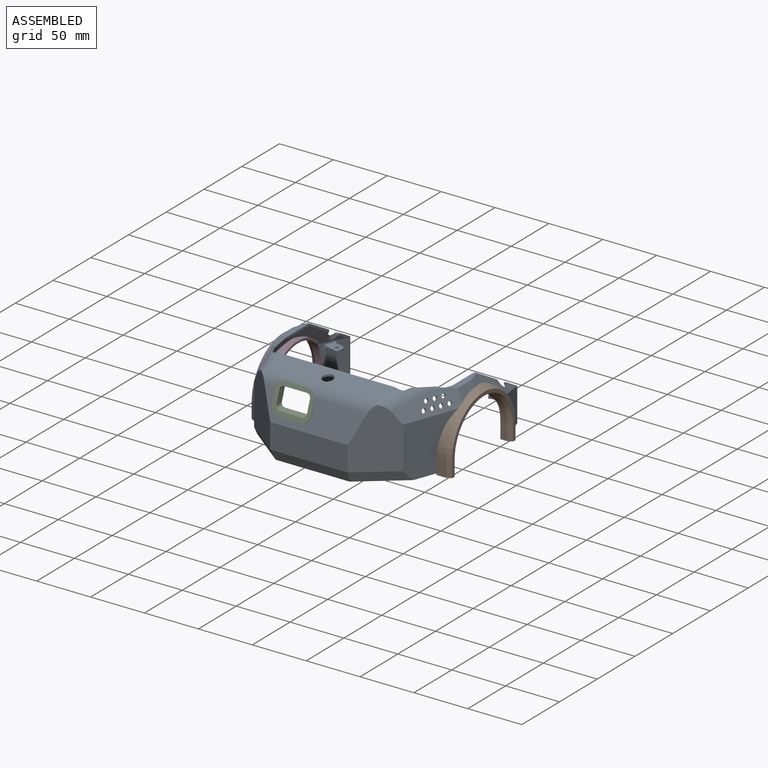
[diagram: assembled view]
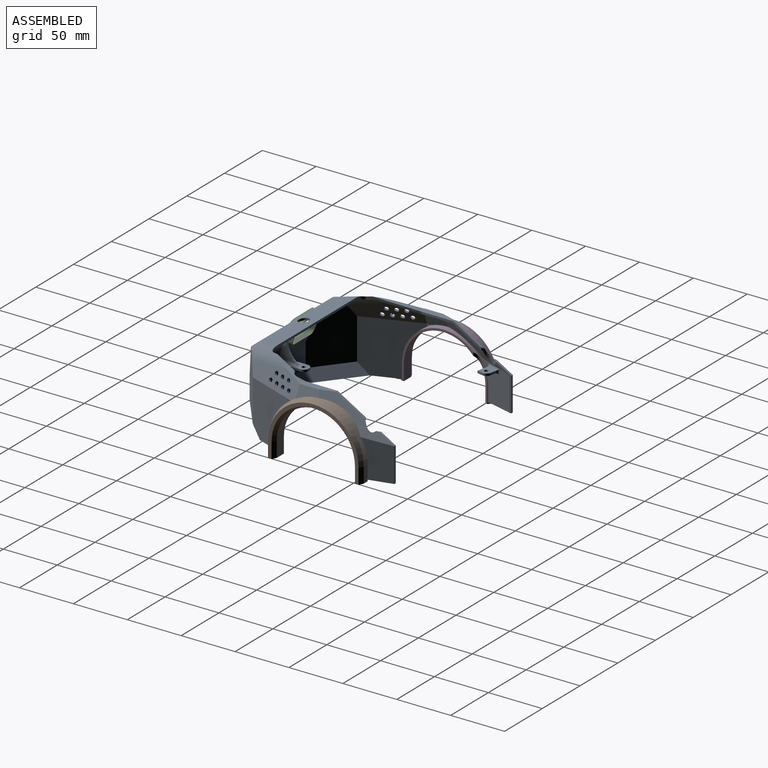
[diagram: assembled view, second angle]
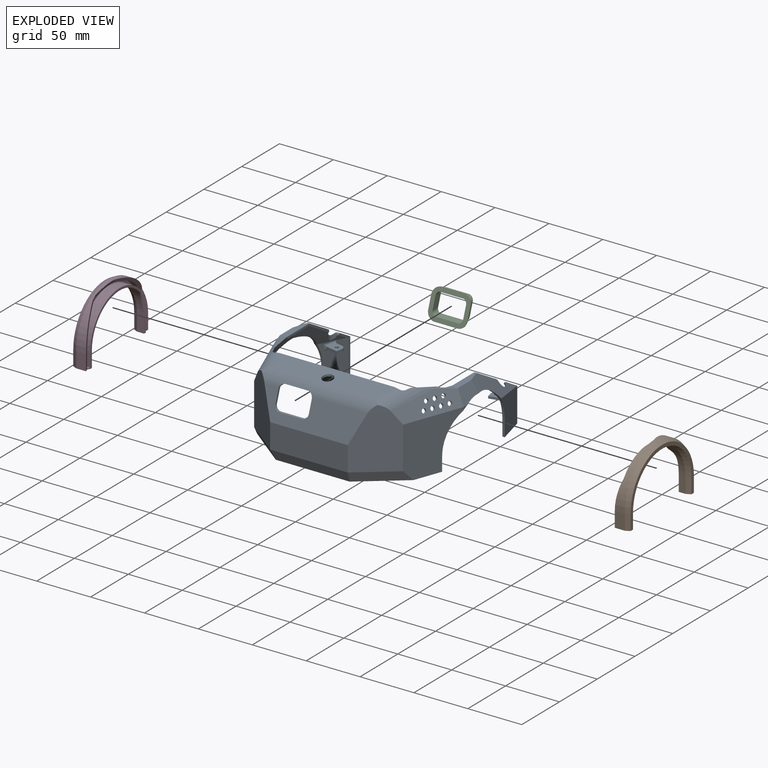
[diagram: exploded view]
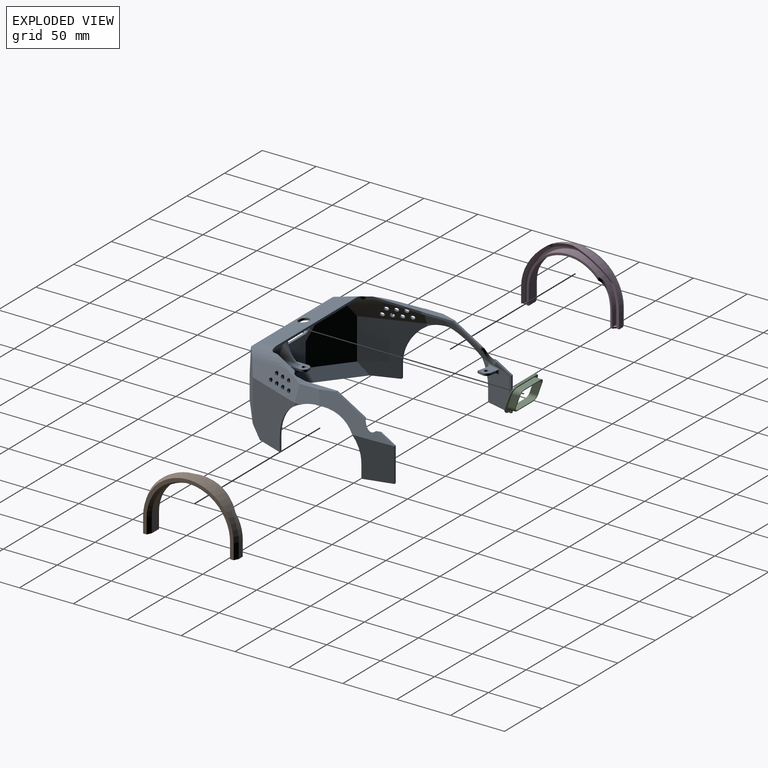
[diagram: exploded view, second angle]
ASSEMBLY  parts=4 mates=3
PART A: 155 faces, bbox 179.1x166x78.9 mm
  f0: cylinder r=14mm len=105.38mm, axis (-1,0,0), area 1347.8mm2, adj f4,f61,f62,f76,f79,f80,f127,f134
  f1: plane 26.97x10.06mm, normal (-0.94,0.35,0), area 61.4mm2, adj f2,f22,f35,f52,f79,f128
  f2: plane 35.33x18.37mm, normal (-0.07,-0.2,-0.98), area 85.4mm2, adj f1,f12,f63,f67,f79,f128
  f3: plane 104.55x15.39mm, normal (0,-0.17,0.98), area 1490.9mm2, adj f31,f52,f53,f54,f127
  f4: plane 94.42x26.55mm, normal (0,0.94,-0.33), area 1655mm2, adj f0,f6,f61,f62,f116,f117,f119,f120
  f5: plane 25.73x10mm, normal (0,0,1), area 140.6mm2, adj f110,f111,f112,f113,f114,f115,f118,f120
  f6: plane 70.61x22.19mm, normal (0,1,0), area 1487.5mm2, adj f4,f61,f62,f82,f122,f123,f125
  f7: plane 25.7x10mm, normal (0,0,-1), area 239mm2, adj f110,f111,f112,f113,f114,f115,f123
  f8: plane 11.68x11.6mm, normal (0,0,1), area 86.4mm2, adj f97,f98,f99,f100,f101,f102,f103
  f9: plane 11.68x11.6mm, normal (0,0,-1), area 86.4mm2, adj f97,f98,f99,f100,f101,f102,f104
  f10: plane 11.68x11.6mm, normal (0,0,1), area 86.4mm2, adj f92,f93,f94,f95,f96,f107,f109
  f11: plane 11.68x11.6mm, normal (0,0,-1), area 86.4mm2, adj f92,f93,f94,f95,f96,f108,f109
  f12: plane 63.33x19.13mm, normal (-1,0,0), area 135.2mm2, adj f2,f35,f37,f45,f67,f73,f90,f128
  f13: plane 55.57x17.57mm, normal (1,0,0), area 119.3mm2, adj f15,f17,f28,f38,f68,f91,f151
  f14: plane 14.31x8.33mm, normal (0,0.5,0.86), area 31.8mm2, adj f26,f39,f48,f153
  f15: plane 26.59x15.48mm, normal (0,0.5,0.86), area 60.2mm2, adj f13,f38,f47,f151
  f16: plane 13.31x7.75mm, normal (0,-0.5,-0.86), area 13mm2, adj f39,f59,f75,f77,f90
  f17: plane 27.12x15.8mm, normal (0,-0.5,-0.86), area 27.7mm2, adj f13,f18,f68,f91
  f18: plane 63.29x29.56mm, normal (0.85,-0.27,-0.46), area 537.8mm2, adj f17,f68,f69,f74,f78,f84,f91,f102
  f19: plane 26x8.5mm, normal (0,0,-1), area 54mm2, adj f25,f40,f51,f58,f78,f85
  f20: plane 26x8.5mm, normal (0,0,-1), area 54mm2, adj f26,f39,f50,f59,f77,f88
  f21: plane 5.56x2.86mm, normal (-1,0,0), area 7.4mm2, adj f41,f44,f84
  f22: cylinder r=5mm len=4.69mm, axis (0,0,1), area 14.1mm2, adj f1,f31,f52,f79
  f23: cylinder r=5mm len=4.69mm, axis (0,0,1), area 14.1mm2, adj f28,f31,f54,f80
  f24: plane 163.28x54.9mm, normal (0,0,-1), area 469.1mm2, adj f43,f44,f55,f56,f57,f71,f72,f81
  f25: plane 31.56x2mm, normal (0,1,0), area 63.1mm2, adj f19,f40,f46,f51
  f26: plane 31.56x2mm, normal (0,1,0), area 63.1mm2, adj f14,f20,f39,f50
  f27: plane 72x23mm, normal (0,-1,0), area 1656mm2, adj f30,f32,f49,f56
  f28: plane 40.4x15.06mm, normal (0.94,0.35,0), area 90.7mm2, adj f13,f23,f34,f54,f64,f68,f80
  f29: plane 58.94x26.52mm, normal (-0.87,-0.32,0.38), area 899.2mm2, adj f32,f34,f38,f41,f44,f54,f137,f138
  f30: plane 57.78x34.73mm, normal (0.62,-0.79,0), area 1912.7mm2, adj f27,f33,f43,f49,f52,f53,f57
  f31: plane 113.7x2.87mm, normal (0,1,0), area 231.2mm2, adj f3,f22,f23,f52,f54,f76,f79,f80
  f32: plane 57.78x34.73mm, normal (-0.62,-0.79,0), area 1912.7mm2, adj f27,f29,f44,f49,f53,f54,f55
  f33: plane 58.94x26.52mm, normal (0.87,-0.32,0.38), area 899.2mm2, adj f30,f35,f37,f42,f43,f52,f144,f145
  f34: plane 38.01x21.23mm, normal (-0.07,0.2,0.98), area 159mm2, adj f28,f29,f38,f54
  f35: plane 38.01x21.23mm, normal (0.07,0.2,0.98), area 131.6mm2, adj f1,f12,f33,f37,f52,f128
  f36: plane 5.56x2.86mm, normal (1,0,0), area 7.4mm2, adj f42,f43,f89
  f37: plane 31.55x6.17mm, normal (0,0,1), area 160.5mm2, adj f12,f33,f35,f42,f45,f48
  f38: plane 31.55x6.17mm, normal (0,0,1), area 160.5mm2, adj f13,f15,f29,f34,f41,f47
  f39: plane 39.46x14.86mm, normal (-1,0,0), area 93.4mm2, adj f14,f16,f20,f26,f59,f90,f153
  f40: plane 39.46x14.86mm, normal (1,0,0), area 93.4mm2, adj f19,f25,f46,f58,f74,f91,f152
  f41: plane 23.45x14.8mm, normal (-0.92,0,0.38), area 270mm2, adj f21,f29,f38,f47,f84
  f42: plane 23.45x14.8mm, normal (0.92,0,0.38), area 270mm2, adj f33,f36,f37,f48,f89
  f43: plane 52.34x49mm, normal (0.94,-0.35,0), area 1972mm2, adj f24,f30,f33,f36,f57,f87,f89
  f44: plane 52.34x49mm, normal (-0.94,-0.35,0), area 1972mm2, adj f21,f24,f29,f32,f55,f84,f86
  f45: plane 26.59x15.48mm, normal (0,0.5,0.86), area 60.2mm2, adj f12,f37,f48,f154
  f46: plane 14.31x8.33mm, normal (0,0.5,0.86), area 31.8mm2, adj f25,f40,f47,f152
  f47: plane 67.47x31.65mm, normal (-0.85,0.27,0.46), area 710.5mm2, adj f15,f38,f41,f46,f51,f84,f91,f151
  f48: plane 67.47x31.65mm, normal (0.85,0.27,0.46), area 710.5mm2, adj f14,f37,f42,f45,f50,f89,f90,f153
  f49: plane 96.09x26.88mm, normal (0,-0.94,0.33), area 1757mm2, adj f27,f30,f32,f53,f129,f130,f131,f132
  f50: plane 36.39x34.03mm, normal (0.97,0.24,0), area 937.5mm2, adj f20,f26,f48,f88,f89
  f51: plane 36.39x34.03mm, normal (-0.97,0.24,0), area 937.5mm2, adj f19,f25,f47,f84,f85
  f52: cylinder r=16mm len=49.4mm, axis (0.28,0.95,0.17), area 528.7mm2, adj f1,f3,f22,f30,f31,f33,f35,f53
  f53: cylinder r=16mm len=107.56mm, axis (-1,0,0), area 1596.5mm2, adj f3,f30,f32,f49,f52,f54,f127,f134
  f54: cylinder r=16mm len=49.4mm, axis (0.28,-0.95,-0.17), area 528.7mm2, adj f3,f23,f28,f29,f31,f32,f34,f53
  f55: plane 38.11x35mm, normal (-0.55,-0.7,-0.45), area 506.1mm2, adj f24,f32,f44,f56
  f56: plane 72x10mm, normal (0,-0.89,-0.45), area 785.6mm2, adj f24,f27,f55,f57
  f57: plane 38.11x35mm, normal (0.55,-0.7,-0.45), area 506.1mm2, adj f24,f30,f43,f56
  f58: plane 30.41x0.44mm, normal (0,-1,0), area 13.3mm2, adj f19,f40,f74,f78
  f59: plane 30.41x0.44mm, normal (0,-1,0), area 13.3mm2, adj f16,f20,f39,f77
  f60: plane 57.83x26.04mm, normal (0.87,0.32,-0.38), area 831.6mm2, adj f62,f64,f68,f69,f72,f80,f137,f138
  f61: plane 56.05x33.7mm, normal (-0.62,0.79,0), area 1802.6mm2, adj f0,f4,f6,f63,f71,f79,f83
  f62: plane 56.05x33.7mm, normal (0.62,0.79,0), area 1802.6mm2, adj f0,f4,f6,f60,f72,f80,f81
  f63: plane 57.83x26.04mm, normal (-0.87,0.32,-0.38), area 831.6mm2, adj f2,f61,f67,f70,f71,f79,f144,f145
  f64: plane 35.36x18.37mm, normal (0.07,-0.2,-0.98), area 112.8mm2, adj f28,f60,f68,f80
  f65: plane 4.27x2.24mm, normal (-1,0,0), area 4.5mm2, adj f70,f71,f89
  f66: plane 4.27x2.24mm, normal (1,0,0), area 4.5mm2, adj f69,f72,f84
  f67: plane 30.74x4.83mm, normal (0,0,-1), area 120mm2, adj f2,f12,f63,f70,f73,f75
  f68: plane 30.74x4.91mm, normal (0,0,-1), area 120mm2, adj f13,f17,f18,f28,f60,f64,f69
  f69: plane 22.5x13.23mm, normal (0.92,0,-0.38), area 222.6mm2, adj f18,f60,f66,f68,f84
  f70: plane 22.5x13.23mm, normal (-0.92,0,-0.38), area 222.6mm2, adj f63,f65,f67,f75,f89
  f71: plane 51.48x48.6mm, normal (-0.94,0.35,0), area 1882.5mm2, adj f24,f61,f63,f65,f83,f87,f89
  f72: plane 51.48x48.6mm, normal (0.94,0.35,0), area 1882.5mm2, adj f24,f60,f62,f66,f81,f84,f86
  f73: plane 27.12x15.8mm, normal (0,-0.5,-0.86), area 27.7mm2, adj f12,f67,f75,f90
  f74: plane 13.31x7.75mm, normal (0,-0.5,-0.86), area 13mm2, adj f18,f40,f58,f78,f91
  f75: plane 63.29x29.56mm, normal (-0.85,-0.27,-0.46), area 537.8mm2, adj f16,f67,f70,f73,f77,f89,f90,f107
  f76: plane 104.35x15.04mm, normal (0,0.17,-0.98), area 1456.8mm2, adj f0,f31,f79,f80,f127
  f77: plane 35.74x31.57mm, normal (-0.97,-0.24,0), area 772.5mm2, adj f16,f20,f59,f75,f88,f89,f106,f107
  f78: plane 35.74x31.57mm, normal (0.97,-0.24,0), area 772.5mm2, adj f18,f19,f58,f74,f84,f85,f102,f103
  f79: cylinder r=14mm len=44.87mm, axis (0.28,0.95,0.17), area 415.1mm2, adj f0,f1,f2,f22,f31,f61,f63,f76
  f80: cylinder r=14mm len=44.87mm, axis (0.28,-0.95,-0.17), area 415.1mm2, adj f0,f23,f28,f31,f60,f62,f64,f76
  f81: plane 37.37x34.65mm, normal (0.55,0.7,0.45), area 517.1mm2, adj f24,f62,f72,f82
  f82: plane 70.61x10.47mm, normal (0,0.89,0.45), area 805.5mm2, adj f6,f24,f81,f83
  f83: plane 37.37x34.65mm, normal (-0.55,0.7,0.45), area 517.1mm2, adj f24,f61,f71,f82
  f84: cylinder r=39mm len=78mm, axis (1,0,0), area 267.9mm2, adj f18,f21,f41,f44,f47,f51,f66,f69
  f85: plane 13x2.06mm, normal (0,-1,0), area 26.8mm2, adj f19,f51,f78,f84
  f86: plane 13x2.13mm, normal (0,1,0), area 27.7mm2, adj f24,f44,f72,f84
  f87: plane 13x2.13mm, normal (0,1,0), area 27.7mm2, adj f24,f43,f71,f89
  f88: plane 13x2.06mm, normal (0,-1,0), area 26.8mm2, adj f20,f50,f77,f89
  f89: cylinder r=39mm len=78mm, axis (1,0,0), area 267.9mm2, adj f36,f42,f43,f48,f50,f65,f70,f71
  f90: cylinder r=7mm len=13.01mm, axis (0,0,1), area 59.6mm2, adj f12,f16,f39,f48,f73,f75,f153,f154
  f91: cylinder r=7mm len=13.01mm, axis (0,0,1), area 59.6mm2, adj f13,f17,f18,f40,f47,f74,f151,f152
  f92: plane 5.32x2mm, normal (-0.22,0.98,0), area 10.9mm2, adj f10,f11,f93,f109
  f93: cylinder r=5mm len=4.23mm, axis (0,0,-1), area 12.2mm2, adj f10,f11,f92,f94
  f94: plane 6.25x2mm, normal (-0.98,-0.22,0), area 12.8mm2, adj f10,f11,f93,f95
  f95: plane 10.27x2.27mm, normal (0.22,-0.98,0), area 21mm2, adj f10,f11,f94,f106,f107,f108
  f96: cylinder r=1.75mm len=3.5mm, axis (0,0,-1), area 22mm2, adj f10,f11
  f97: plane 10.27x2.27mm, normal (-0.22,-0.98,0), area 21mm2, adj f8,f9,f98,f103,f104,f105
  f98: plane 6.25x2mm, normal (0.98,-0.22,0), area 12.8mm2, adj f8,f9,f97,f99
  f99: cylinder r=5mm len=4.23mm, axis (0,0,-1), area 12.2mm2, adj f8,f9,f98,f100
  f100: plane 5.32x2mm, normal (0.22,0.98,0), area 10.9mm2, adj f8,f9,f99,f102
  f101: cylinder r=1.75mm len=3.5mm, axis (0,0,-1), area 22mm2, adj f8,f9
  f102: cylinder r=2mm len=5.65mm, axis (0,0,1), area 10.9mm2, adj f8,f9,f18,f78,f100,f103,f104
  f103: cylinder r=2mm len=13.44mm, axis (-0.24,-0.97,0), area 34.3mm2, adj f8,f18,f78,f97,f102,f105
  f104: cylinder r=2mm len=13.78mm, axis (0.24,0.97,0), area 35.1mm2, adj f9,f78,f97,f102,f105
  f105: cylinder r=2mm len=6mm, axis (0,0,-1), area 12.4mm2, adj f78,f97,f103,f104
  f106: cylinder r=2mm len=6mm, axis (0,0,-1), area 12.4mm2, adj f77,f95,f107,f108
  f107: cylinder r=2mm len=13.44mm, axis (-0.24,0.97,0), area 34.3mm2, adj f10,f75,f77,f95,f106,f109
  f108: cylinder r=2mm len=13.78mm, axis (0.24,-0.97,0), area 35.1mm2, adj f11,f77,f95,f106,f109
  f109: cylinder r=2mm len=5.65mm, axis (0,0,-1), area 10.9mm2, adj f10,f11,f75,f77,f92,f107,f108
  f110: plane 21x2mm, normal (1,0,0), area 42mm2, adj f5,f7,f112,f122
  f111: plane 21x2mm, normal (-1,0,0), area 42mm2, adj f5,f7,f114,f125
  f112: cylinder r=5mm len=4.7mm, axis (0,0,-1), area 12.2mm2, adj f5,f7,f110,f113
  f113: plane 3.41x2mm, normal (0,1,0), area 6.8mm2, adj f5,f7,f112,f114
  f114: cylinder r=5mm len=4.7mm, axis (0,0,-1), area 12.2mm2, adj f5,f7,f111,f113
  f115: cylinder r=1.75mm len=3.5mm, axis (0,0,-1), area 22mm2, adj f5,f7
  f116: plane 24.71x15.7mm, normal (-1,0,0), area 122.8mm2, adj f4,f119,f124
  f117: plane 24.71x15.7mm, normal (1,0,0), area 122.8mm2, adj f4,f119,f120
  f118: plane 6x2.16mm, normal (0,0.61,0.79), area 8.3mm2, adj f5,f119,f120,f124
  f119: cylinder r=22.27mm len=25.05mm, axis (1,0,0), area 55.9mm2, adj f4,f116,f117,f118,f120,f124
  f120: cylinder r=2mm len=18.41mm, axis (0,1,0), area 52.6mm2, adj f4,f5,f117,f118,f119,f121
  f121: cylinder r=2mm len=5.97mm, axis (-1,0,0), area 10.7mm2, adj f4,f5,f120,f122
  f122: cylinder r=2mm len=5.66mm, axis (0,0,1), area 10.7mm2, adj f5,f6,f110,f121,f123
  f123: cylinder r=2mm len=14mm, axis (1,0,0), area 37.7mm2, adj f6,f7,f122,f125
  f124: cylinder r=2mm len=18.41mm, axis (0,-1,0), area 52.6mm2, adj f4,f5,f116,f118,f119,f126
  f125: cylinder r=2mm len=5.66mm, axis (0,0,-1), area 10.7mm2, adj f5,f6,f111,f123,f126
  f126: cylinder r=2mm len=5.97mm, axis (-1,0,0), area 10.7mm2, adj f4,f5,f124,f125
  f127: cylinder r=5mm len=10mm, axis (0,0,-1), area 64.5mm2, adj f0,f3,f53,f76
  f128: cylinder r=5.73mm len=5.68mm, axis (0,0,-1), area 16.9mm2, adj f1,f2,f12,f35
  f129: cylinder r=5mm len=5mm, axis (0,-1,0), area 16.7mm2, adj f4,f49,f131,f132
  f130: cylinder r=5mm len=5mm, axis (0,-1,0), area 16.7mm2, adj f4,f49,f131,f133
  f131: plane 21x2.12mm, normal (0,0,1), area 44.5mm2, adj f4,f49,f129,f130
  f132: plane 10.9x5.95mm, normal (-1,0,0), area 23.1mm2, adj f4,f49,f129,f134
  f133: plane 10.9x5.95mm, normal (1,0,0), area 23.1mm2, adj f4,f49,f130,f135
  f134: cylinder r=5mm len=5mm, axis (0,-1,0), area 17.7mm2, adj f0,f4,f49,f53,f132,f136
  f135: cylinder r=5mm len=5mm, axis (0,-1,0), area 17.7mm2, adj f0,f4,f49,f53,f133,f136
  f136: plane 21x2.47mm, normal (0,0,-1), area 51.9mm2, adj f0,f53,f134,f135
  f137: cylinder r=2mm len=4.46mm, axis (-0.87,-0.32,0.38), area 25.1mm2, adj f29,f60
  f138: cylinder r=2mm len=4.46mm, axis (-0.87,-0.32,0.38), area 25.1mm2, adj f29,f60
  f139: cylinder r=2mm len=4.46mm, axis (-0.87,-0.32,0.38), area 25.1mm2, adj f29,f60
  f140: cylinder r=2mm len=4.46mm, axis (-0.87,-0.32,0.38), area 25.1mm2, adj f29,f60
  f141: cylinder r=2mm len=4.46mm, axis (-0.87,-0.32,0.38), area 25.1mm2, adj f29,f60
  f142: cylinder r=2mm len=4.46mm, axis (-0.87,-0.32,0.38), area 25.1mm2, adj f29,f60
  f143: cylinder r=2mm len=4.46mm, axis (-0.87,-0.32,0.38), area 25.1mm2, adj f29,f60
  f144: cylinder r=2mm len=4.46mm, axis (0.87,-0.32,0.38), area 25.1mm2, adj f33,f63
  f145: cylinder r=2mm len=4.46mm, axis (0.87,-0.32,0.38), area 25.1mm2, adj f33,f63
  f146: cylinder r=2mm len=4.46mm, axis (0.87,-0.32,0.38), area 25.1mm2, adj f33,f63
  f147: cylinder r=2mm len=4.46mm, axis (0.87,-0.32,0.38), area 25.1mm2, adj f33,f63
  f148: cylinder r=2mm len=4.46mm, axis (0.87,-0.32,0.38), area 25.1mm2, adj f33,f63
  f149: cylinder r=2mm len=4.46mm, axis (0.87,-0.32,0.38), area 25.1mm2, adj f33,f63
  f150: cylinder r=2mm len=4.46mm, axis (0.87,-0.32,0.38), area 25.1mm2, adj f33,f63
  f151: bspline ~3.44x2.21mm, area 3mm2, adj f13,f15,f47,f91
  f152: bspline ~3.96x3.64mm, area 5.8mm2, adj f40,f46,f47,f91
  f153: bspline ~3.96x3.64mm, area 5.8mm2, adj f14,f39,f48,f90
  f154: bspline ~3.44x2.21mm, area 3mm2, adj f12,f45,f48,f90
PART B: 36 faces, bbox 13.6x88.1x58.4 mm
  f0: plane 13.3x6.83mm, normal (0,1,0), area 90.8mm2, adj f19,f20,f22,f27
  f1: plane 14.3x5.25mm, normal (0,1,0), area 75.1mm2, adj f6,f12,f29,f35
  f2: plane 66.47x53mm, normal (-1,0,0), area 209.5mm2, adj f3,f4,f16,f19,f21,f25,f26
  f3: plane 14.3x9.5mm, normal (0,1,0), area 135.8mm2, adj f2,f4,f26,f30
  f4: cylinder r=36.7mm len=73.4mm, axis (-1,0,0), area 1016.3mm2, adj f2,f3,f5,f21,f22,f31
  f5: plane 14.3x6.39mm, normal (0,-1,0), area 91.3mm2, adj f4,f22,f29,f32
  f6: cylinder r=44mm len=88mm, axis (-1,0,0), area 764.7mm2, adj f1,f7,f9,f10,f11,f12,f13,f23
  f7: plane 14.3x9.22mm, normal (0,-1,0), area 131.8mm2, adj f6,f13,f26,f33
  f8: plane 84x56.3mm, normal (1,0,0), area 512.7mm2, adj f26,f29,f30,f31,f32,f33,f34,f35
  f9: plane 5.08x3.13mm, normal (-0.87,0.32,-0.38), area 8.7mm2, adj f6,f10,f13
  f10: plane 21.85x8mm, normal (-0.92,0,-0.38), area 71.4mm2, adj f6,f9,f11,f14,f17
  f11: plane 38.14x22.24mm, normal (-0.85,-0.27,-0.46), area 151mm2, adj f6,f10,f12,f17,f23
  f12: plane 36.51x9.54mm, normal (-0.97,-0.24,0), area 115.7mm2, adj f1,f6,f11,f17,f18,f28,f29
  f13: plane 50.3x23.44mm, normal (-0.94,0.35,0), area 183.1mm2, adj f6,f7,f9,f14,f15,f17,f25,f26
  f14: plane 0.94x0.53mm, normal (-1,0,0), area 0.2mm2, adj f10,f13,f17
  f15: plane 13.3x8.1mm, normal (0,1,0), area 107.8mm2, adj f13,f17,f20,f24
  f16: plane 13.3x9.5mm, normal (0,-1,0), area 126.3mm2, adj f2,f19,f20,f24
  f17: cylinder r=41mm len=82mm, axis (-1,0,0), area 554.8mm2, adj f10,f11,f12,f13,f14,f15,f18,f20
  f18: plane 13.3x4.5mm, normal (0,-1,0), area 59.8mm2, adj f12,f17,f20,f27
  f19: cylinder r=38.7mm len=77.4mm, axis (-1,0,0), area 1068.9mm2, adj f0,f2,f16,f20,f21,f22
  f20: plane 82x54.3mm, normal (-1,0,0), area 349.1mm2, adj f0,f15,f16,f17,f18,f19,f24,f27
  f21: cylinder r=7mm len=17.22mm, axis (0,0,-1), area 33.8mm2, adj f2,f4,f19,f22
  f22: plane 29.97x3.31mm, normal (-0.98,-0.22,0), area 56.3mm2, adj f0,f4,f5,f19,f21,f28,f29
  f23: cylinder r=7mm len=3.22mm, axis (0,0,-1), area 0.9mm2, adj f6,f11
  f24: plane 9.5x2.3mm, normal (0,0,1), area 20.2mm2, adj f15,f16,f20,f25
  f25: plane 2.3x1.4mm, normal (-0.85,-0.52,0), area 2.7mm2, adj f2,f13,f24,f26
  f26: plane 13.5x7.3mm, normal (0,0,-1), area 86.4mm2, adj f2,f3,f7,f8,f13,f25,f30,f33
  f27: plane 6.83x2.3mm, normal (0,0,1), area 13mm2, adj f0,f18,f20,f28
  f28: plane 2.33x2.3mm, normal (-0.7,0.71,0), area 3.3mm2, adj f12,f22,f27,f29
  f29: plane 10.83x7.3mm, normal (0,0,-1), area 62.1mm2, adj f1,f5,f8,f12,f22,f28,f32,f35
  f30: plane 14.3x4mm, normal (0.45,0.89,0), area 64mm2, adj f3,f8,f26,f31
  f31: cone r=36.7mm half-angle=26.6deg, axis (1,0,0), area 529.7mm2, adj f4,f8,f30,f32
  f32: plane 14.3x4mm, normal (0.45,-0.89,0), area 64mm2, adj f5,f8,f29,f31
  f33: plane 14.3x4mm, normal (0.45,-0.89,0), area 64mm2, adj f7,f8,f26,f34
  f34: cone r=42mm half-angle=26.6deg, axis (-1,0,0), area 604.1mm2, adj f6,f8,f33,f35
  f35: plane 14.3x4mm, normal (0.45,0.89,0), area 64mm2, adj f1,f8,f29,f34
PART C: 28 faces, bbox 37.1x16.2x26.8 mm
  f0: plane 21x1.64mm, normal (0,0.33,0.94), area 36.5mm2, adj f19,f21,f22,f27
  f1: cylinder r=4.7mm len=8.49mm, axis (0,1,0), area 48.6mm2, adj f2,f6,f8,f18,f27
  f2: plane 21x6.42mm, normal (0,0,1), area 134.9mm2, adj f1,f3,f18,f27
  f3: cylinder r=4.7mm len=8.49mm, axis (0,1,0), area 48.6mm2, adj f2,f6,f11,f18,f27
  f4: cylinder r=3.7mm len=8.66mm, axis (0,1,0), area 42.8mm2, adj f12,f17,f18,f19
  f5: cylinder r=3.7mm len=8.66mm, axis (0,1,0), area 42.8mm2, adj f12,f13,f18,f19
  f6: plane 37.1x20.83mm, normal (0,0.94,-0.33), area 208.3mm2, adj f1,f3,f7,f8,f9,f10,f11,f20
  f7: plane 21x6.83mm, normal (0,0,-1), area 143.5mm2, adj f6,f9,f10,f18
  f8: plane 10.9x10.67mm, normal (1,0,0), area 74.5mm2, adj f1,f6,f10,f18
  f9: cylinder r=4.7mm len=8.49mm, axis (0,1,0), area 50.4mm2, adj f6,f7,f11,f18
  f10: cylinder r=4.7mm len=8.49mm, axis (0,1,0), area 50.4mm2, adj f6,f7,f8,f18
  f11: plane 10.9x10.67mm, normal (-1,0,0), area 74.5mm2, adj f3,f6,f9,f18
  f12: plane 21x7.36mm, normal (0,0,-1), area 154.6mm2, adj f4,f5,f18,f19
  f13: plane 11.2x10.9mm, normal (1,0,0), area 80.2mm2, adj f5,f14,f18,f19
  f14: cylinder r=3.7mm len=8.66mm, axis (0,1,0), area 42.8mm2, adj f13,f15,f18,f19
  f15: plane 21x7.36mm, normal (0,0,1), area 154.6mm2, adj f14,f16,f18,f19
  f16: cylinder r=3.7mm len=8.66mm, axis (0,1,0), area 42.8mm2, adj f15,f17,f18,f19
  f17: plane 11.2x10.9mm, normal (-1,0,0), area 80.2mm2, adj f4,f16,f18,f19
  f18: plane 31.1x21mm, normal (0,0.94,-0.33), area 95.6mm2, adj f1,f2,f3,f4,f5,f7,f8,f9
  f19: plane 36.95x26.51mm, normal (0,-0.94,0.33), area 410.5mm2, adj f0,f4,f5,f12,f13,f14,f15,f16
  f20: plane 11.07x4.3mm, normal (1,0,0), area 5.8mm2, adj f6,f19,f21,f26
  f21: extruded ~8.11x7.7mm, area 12.6mm2, adj f0,f6,f19,f20,f27
  f22: extruded ~8.11x7.7mm, area 12.6mm2, adj f0,f6,f19,f23,f27
  f23: plane 11.07x4.3mm, normal (-1,0,0), area 5.8mm2, adj f6,f19,f22,f24
  f24: extruded ~7.7x7.7mm, area 6.2mm2, adj f6,f19,f23,f25
  f25: plane 21x0.47mm, normal (0,-0.33,-0.94), area 10.5mm2, adj f6,f19,f24,f26
  f26: extruded ~7.7x7.7mm, area 6.2mm2, adj f6,f19,f20,f25
  f27: cylinder r=16mm len=36mm, axis (-1,0,0), area 114mm2, adj f0,f1,f2,f3,f6,f21,f22
PART D: 35 faces, bbox 13.5x88x58.3 mm
  f0: plane 66.47x53mm, normal (1,0,0), area 209.5mm2, adj f2,f4,f5,f19,f21,f23,f24
  f1: plane 13.3x6.83mm, normal (0,1,0), area 90.8mm2, adj f2,f20,f22,f26
  f2: cylinder r=38.7mm len=77.4mm, axis (1,0,0), area 1068.9mm2, adj f0,f1,f19,f20,f21,f22
  f3: plane 14.3x5.25mm, normal (0,1,0), area 75.1mm2, adj f7,f14,f28,f32
  f4: cylinder r=36.7mm len=73.4mm, axis (1,0,0), area 1016.3mm2, adj f0,f5,f8,f21,f22,f30
  f5: plane 14.3x9.5mm, normal (0,1,0), area 135.8mm2, adj f0,f4,f24,f31
  f6: plane 14.3x9.22mm, normal (0,-1,0), area 131.8mm2, adj f7,f12,f24,f34
  f7: cylinder r=44mm len=88mm, axis (1,0,0), area 765.6mm2, adj f3,f6,f10,f11,f12,f13,f14,f33
  f8: plane 14.3x6.39mm, normal (0,-1,0), area 91.3mm2, adj f4,f22,f28,f29
  f9: plane 84x56.3mm, normal (-1,0,0), area 512.7mm2, adj f24,f28,f29,f30,f31,f32,f33,f34
  f10: plane 4.97x3.02mm, normal (0.87,0.32,-0.38), area 8.7mm2, adj f7,f11,f12
  f11: plane 21.85x8mm, normal (0.92,0,-0.38), area 71.4mm2, adj f7,f10,f13,f15,f18
  f12: plane 50.3x23.44mm, normal (0.94,0.35,0), area 183.1mm2, adj f6,f7,f10,f15,f16,f18,f23,f24
  f13: plane 38.14x22.24mm, normal (0.85,-0.27,-0.46), area 152mm2, adj f7,f11,f14,f18
  f14: plane 36.51x9.54mm, normal (0.97,-0.24,0), area 115.7mm2, adj f3,f7,f13,f17,f18,f27,f28
  f15: plane 0.94x0.53mm, normal (1,0,0), area 0.2mm2, adj f11,f12,f18
  f16: plane 13.3x8.1mm, normal (0,1,0), area 107.8mm2, adj f12,f18,f20,f25
  f17: plane 13.3x4.5mm, normal (0,-1,0), area 59.8mm2, adj f14,f18,f20,f26
  f18: cylinder r=41mm len=82mm, axis (1,0,0), area 554.8mm2, adj f11,f12,f13,f14,f15,f16,f17,f20
  f19: plane 13.3x9.5mm, normal (0,-1,0), area 126.3mm2, adj f0,f2,f20,f25
  f20: plane 82x54.3mm, normal (1,0,0), area 349.1mm2, adj f1,f2,f16,f17,f18,f19,f25,f26
  f21: cylinder r=7mm len=17.22mm, axis (0,0,-1), area 33.8mm2, adj f0,f2,f4,f22
  f22: plane 29.97x3.31mm, normal (0.98,-0.22,0), area 56.3mm2, adj f1,f2,f4,f8,f21,f27,f28
  f23: plane 2.3x1.4mm, normal (0.85,-0.52,0), area 2.7mm2, adj f0,f12,f24,f25
  f24: plane 13.5x7.3mm, normal (0,0,-1), area 86.4mm2, adj f0,f5,f6,f9,f12,f23,f31,f34
  f25: plane 9.5x2.3mm, normal (0,0,1), area 20.2mm2, adj f16,f19,f20,f23
  f26: plane 6.83x2.3mm, normal (0,0,1), area 13mm2, adj f1,f17,f20,f27
  f27: plane 2.33x2.3mm, normal (0.7,0.71,0), area 3.3mm2, adj f14,f22,f26,f28
  f28: plane 10.83x7.3mm, normal (0,0,-1), area 62.1mm2, adj f3,f8,f9,f14,f22,f27,f29,f32
  f29: plane 14.3x4mm, normal (-0.45,-0.89,0), area 64mm2, adj f8,f9,f28,f30
  f30: cone r=36.7mm half-angle=26.6deg, axis (-1,0,0), area 529.7mm2, adj f4,f9,f29,f31
  f31: plane 14.3x4mm, normal (-0.45,0.89,0), area 64mm2, adj f5,f9,f24,f30
  f32: plane 14.3x4mm, normal (-0.45,0.89,0), area 64mm2, adj f3,f9,f28,f33
  f33: cone r=42mm half-angle=26.6deg, axis (1,0,0), area 604.1mm2, adj f7,f9,f32,f34
  f34: plane 14.3x4mm, normal (-0.45,-0.89,0), area 64mm2, adj f6,f9,f24,f33
PLACE A t=(-85.6,135.18,-69.29)mm
PLACE B t=(-85.6,135.18,-69.29)mm
PLACE C rot(axis=(-1,0,0),0deg) t=(-89.1,35.92,-56.59)mm
PLACE D t=(-85.6,135.18,-69.29)mm
MATE fastened C.f6 <-> A.f49  axis (0,0.94,-0.33) through (-115.1,27.43,-40.69)mm
MATE fastened A.f84 <-> D.f30  axis (-1,0,0) through (-174.1,117.68,-85.29)mm
MATE fastened B.f31 <-> A.f84  axis (-1,0,0) through (2.9,117.68,-85.29)mm
